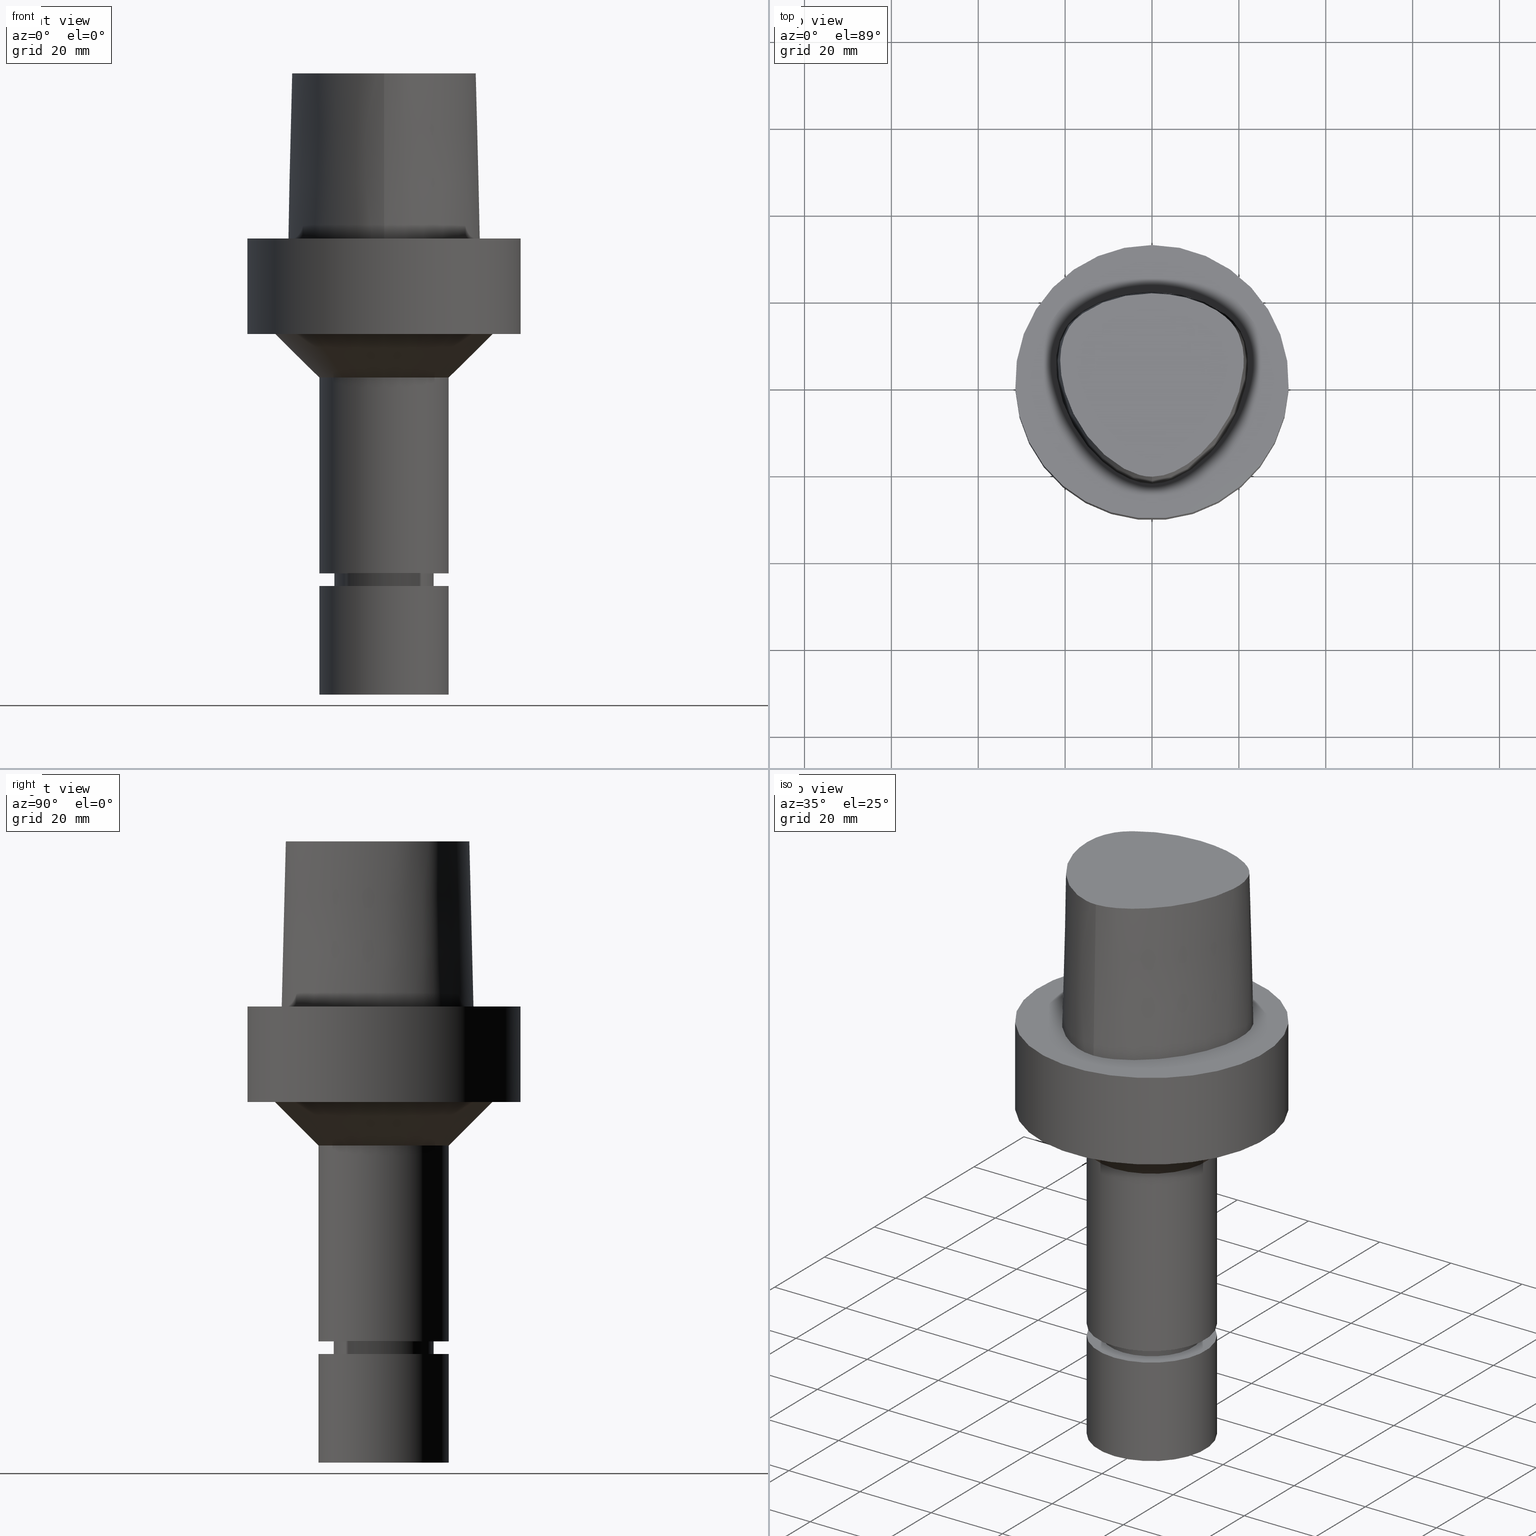
[diagram: canonical four-view strip — front | top / right | iso, engineering-drawing reading convention]
A machine part, canonical four-view strip (front | top / right | iso — engineering-drawing reading convention). The complete STEP part file that produces these views, byte-faithful:
ISO-10303-21;
HEADER;
FILE_DESCRIPTION((''),'1');
FILE_NAME('V:/90_\X2\53D65F9730C730FC30BF\X0\/00_\X2\6DE18DEF30C730FC30BF\X0\/ALL/CAPTO-BKUS\X2\52A05DE556F3\X0\_201801/C6-MEGAER/C6-MEGAER16-105NL.stp','2018-02-01T07:49:41',(''),(''),'Spatial Interop R21 SP3','Kubotek KeyCreator 2011 V10.0.2 (22737)',' ');
FILE_SCHEMA(('automotive_design'));
ENDSEC;
DATA;
#1=MECHANICAL_DESIGN_GEOMETRIC_PRESENTATION_REPRESENTATION(' ',(#14,#15,#16,#17,#18,#19,#20,#21,#22,#23,#24,#25,#26,#27,#28,#29,#30,#31,#32,#33,#34,#35,#36,#37,#38,#39,#40,#41,#42,#43,#44,#45,#46,#47,#48,#49,#50,#51,#52,#53),#10);
#2=PRODUCT_DEFINITION_CONTEXT('',#54,'design');
#3=APPLICATION_PROTOCOL_DEFINITION('INTERNATIONAL STANDARD','automotive_design',1994,#54);
#4=PRODUCT_CATEGORY_RELATIONSHIP('NONE','NONE',#55,#56);
#5=SHAPE_DEFINITION_REPRESENTATION(#57,#58);
#6=PRODUCT_DEFINITION_CONTEXT('',#59,'design');
#7=APPLICATION_PROTOCOL_DEFINITION('INTERNATIONAL STANDARD','automotive_design',1994,#59);
#8=PRODUCT_CATEGORY_RELATIONSHIP('NONE','NONE',#60,#61);
#9=SHAPE_DEFINITION_REPRESENTATION(#62,#63);
#10= (GEOMETRIC_REPRESENTATION_CONTEXT(3)GLOBAL_UNCERTAINTY_ASSIGNED_CONTEXT((#66))GLOBAL_UNIT_ASSIGNED_CONTEXT((#68,#69,#70))REPRESENTATION_CONTEXT('NONE','WORKSPACE'));
#14=STYLED_ITEM('',(#72),#73);
#15=STYLED_ITEM('',(#74),#75);
#16=STYLED_ITEM('',(#76,#77),#78);
#17=STYLED_ITEM('',(#79,#80),#81);
#18=STYLED_ITEM('',(#82,#83),#84);
#19=STYLED_ITEM('',(#85),#86);
#20=STYLED_ITEM('',(#87,#88),#89);
#21=STYLED_ITEM('',(#90,#91),#92);
#22=STYLED_ITEM('',(#93),#94);
#23=STYLED_ITEM('',(#95),#96);
#24=STYLED_ITEM('',(#97),#98);
#25=STYLED_ITEM('',(#99),#100);
#26=STYLED_ITEM('',(#101),#102);
#27=STYLED_ITEM('',(#103,#104),#105);
#28=STYLED_ITEM('',(#106),#107);
#29=STYLED_ITEM('',(#108,#109),#110);
#30=STYLED_ITEM('',(#111),#112);
#31=STYLED_ITEM('',(#113),#114);
#32=STYLED_ITEM('',(#115),#116);
#33=STYLED_ITEM('',(#117),#118);
#34=STYLED_ITEM('',(#119,#120),#121);
#35=STYLED_ITEM('',(#122,#123),#124);
#36=STYLED_ITEM('',(#125),#126);
#37=STYLED_ITEM('',(#127,#128),#129);
#38=STYLED_ITEM('',(#130),#131);
#39=STYLED_ITEM('',(#132,#133),#134);
#40=STYLED_ITEM('',(#135,#136),#137);
#41=STYLED_ITEM('',(#138),#139);
#42=STYLED_ITEM('',(#140,#141),#142);
#43=STYLED_ITEM('',(#143,#144),#145);
#44=STYLED_ITEM('',(#146,#147),#148);
#45=STYLED_ITEM('',(#149,#150),#151);
#46=STYLED_ITEM('',(#152,#153),#154);
#47=STYLED_ITEM('',(#155,#156),#157);
#48=STYLED_ITEM('',(#158),#159);
#49=STYLED_ITEM('',(#160,#161),#162);
#50=STYLED_ITEM('',(#163),#164);
#51=STYLED_ITEM('',(#165),#166);
#52=STYLED_ITEM('',(#167,#168),#169);
#53=STYLED_ITEM('',(#170),#171);
#54=APPLICATION_CONTEXT(' ');
#55=PRODUCT_CATEGORY('part','NONE');
#56=PRODUCT_RELATED_PRODUCT_CATEGORY('detail',' ',(#172));
#57=PRODUCT_DEFINITION_SHAPE('NONE','NONE',#173);
#58=ADVANCED_BREP_SHAPE_REPRESENTATION('Unnamed[1]',(#157,#174),#10);
#59=APPLICATION_CONTEXT(' ');
#60=PRODUCT_CATEGORY('part','NONE');
#61=PRODUCT_RELATED_PRODUCT_CATEGORY('detail',' ',(#175));
#62=PRODUCT_DEFINITION_SHAPE('NONE','NONE',#176);
#63=ADVANCED_BREP_SHAPE_REPRESENTATION('Unnamed[1]',(#145,#177),#10);
#66=UNCERTAINTY_MEASURE_WITH_UNIT(LENGTH_MEASURE(1.0E-006),#68,'','');
#68= (CONVERSION_BASED_UNIT('MILLIMETRE',#180)LENGTH_UNIT()NAMED_UNIT(#183));
#69= (NAMED_UNIT(#185)PLANE_ANGLE_UNIT()SI_UNIT($,.RADIAN.));
#70= (NAMED_UNIT(#185)SOLID_ANGLE_UNIT()SI_UNIT($,.STERADIAN.));
#72=PRESENTATION_STYLE_ASSIGNMENT((#191));
#73=EDGE_CURVE('Unnamed[1]',#192,#192,#193,.T.);
#74=PRESENTATION_STYLE_ASSIGNMENT((#194));
#75=EDGE_CURVE('Unnamed[1]',#195,#195,#196,.T.);
#76=PRESENTATION_STYLE_ASSIGNMENT((#197));
#77=PRESENTATION_STYLE_ASSIGNMENT((#198));
#78=ADVANCED_FACE('Unnamed[1]',(#199),#200,.T.);
#79=PRESENTATION_STYLE_ASSIGNMENT((#201));
#80=PRESENTATION_STYLE_ASSIGNMENT((#202));
#81=ADVANCED_FACE('Unnamed[1]',(#203,#204),#205,.T.);
#82=PRESENTATION_STYLE_ASSIGNMENT((#206));
#83=PRESENTATION_STYLE_ASSIGNMENT((#207));
#84=ADVANCED_FACE('Unnamed[1]',(#208),#209,.T.);
#85=PRESENTATION_STYLE_ASSIGNMENT((#210));
#86=EDGE_CURVE('Unnamed[1]',#211,#212,#213,.T.);
#87=PRESENTATION_STYLE_ASSIGNMENT((#214));
#88=PRESENTATION_STYLE_ASSIGNMENT((#215));
#89=ADVANCED_FACE('Unnamed[1]',(#216,#217),#218,.T.);
#90=PRESENTATION_STYLE_ASSIGNMENT((#219));
#91=PRESENTATION_STYLE_ASSIGNMENT((#220));
#92=ADVANCED_FACE('Unnamed[1]',(#221),#222,.T.);
#93=PRESENTATION_STYLE_ASSIGNMENT((#223));
#94=EDGE_CURVE('Unnamed[1]',#224,#211,#225,.T.);
#95=PRESENTATION_STYLE_ASSIGNMENT((#226));
#96=EDGE_CURVE('Unnamed[1]',#227,#227,#228,.T.);
#97=PRESENTATION_STYLE_ASSIGNMENT((#229));
#98=EDGE_CURVE('Unnamed[1]',#230,#230,#231,.T.);
#99=PRESENTATION_STYLE_ASSIGNMENT((#232));
#100=EDGE_CURVE('Unnamed[1]',#233,#233,#234,.T.);
#101=PRESENTATION_STYLE_ASSIGNMENT((#235));
#102=EDGE_CURVE('Unnamed[1]',#236,#236,#237,.T.);
#103=PRESENTATION_STYLE_ASSIGNMENT((#238));
#104=PRESENTATION_STYLE_ASSIGNMENT((#239));
#105=ADVANCED_FACE('Unnamed[1]',(#240,#241),#242,.T.);
#106=PRESENTATION_STYLE_ASSIGNMENT((#243));
#107=EDGE_CURVE('Unnamed[1]',#224,#244,#245,.T.);
#108=PRESENTATION_STYLE_ASSIGNMENT((#246));
#109=PRESENTATION_STYLE_ASSIGNMENT((#247));
#110=ADVANCED_FACE('Unnamed[1]',(#248,#249),#250,.T.);
#111=PRESENTATION_STYLE_ASSIGNMENT((#251));
#112=EDGE_CURVE('Unnamed[1]',#252,#212,#253,.T.);
#113=PRESENTATION_STYLE_ASSIGNMENT((#254));
#114=EDGE_CURVE('Unnamed[1]',#224,#252,#255,.T.);
#115=PRESENTATION_STYLE_ASSIGNMENT((#256));
#116=EDGE_CURVE('Unnamed[1]',#244,#211,#257,.T.);
#117=PRESENTATION_STYLE_ASSIGNMENT((#258));
#118=EDGE_CURVE('Unnamed[1]',#259,#259,#260,.T.);
#119=PRESENTATION_STYLE_ASSIGNMENT((#261));
#120=PRESENTATION_STYLE_ASSIGNMENT((#262));
#121=ADVANCED_FACE('Unnamed[1]',(#263,#264),#265,.T.);
#122=PRESENTATION_STYLE_ASSIGNMENT((#266));
#123=PRESENTATION_STYLE_ASSIGNMENT((#267));
#124=ADVANCED_FACE('Unnamed[1]',(#268),#269,.T.);
#125=PRESENTATION_STYLE_ASSIGNMENT((#270));
#126=EDGE_CURVE('Unnamed[1]',#271,#271,#272,.T.);
#127=PRESENTATION_STYLE_ASSIGNMENT((#273));
#128=PRESENTATION_STYLE_ASSIGNMENT((#274));
#129=ADVANCED_FACE('Unnamed[1]',(#275,#276),#277,.T.);
#130=PRESENTATION_STYLE_ASSIGNMENT((#278));
#131=EDGE_CURVE('Unnamed[1]',#279,#279,#280,.T.);
#132=PRESENTATION_STYLE_ASSIGNMENT((#281));
#133=PRESENTATION_STYLE_ASSIGNMENT((#282));
#134=ADVANCED_FACE('Unnamed[1]',(#283,#284),#285,.T.);
#135=PRESENTATION_STYLE_ASSIGNMENT((#286));
#136=PRESENTATION_STYLE_ASSIGNMENT((#287));
#137=ADVANCED_FACE('Unnamed[1]',(#288,#289),#290,.T.);
#138=PRESENTATION_STYLE_ASSIGNMENT((#291));
#139=EDGE_CURVE('Unnamed[1]',#252,#224,#292,.T.);
#140=PRESENTATION_STYLE_ASSIGNMENT((#293));
#141=PRESENTATION_STYLE_ASSIGNMENT((#294));
#142=ADVANCED_FACE('Unnamed[1]',(#295),#296,.T.);
#143=PRESENTATION_STYLE_ASSIGNMENT((#297));
#144=PRESENTATION_STYLE_ASSIGNMENT((#298));
#145=MANIFOLD_SOLID_BREP('Unnamed[1]',#299);
#146=PRESENTATION_STYLE_ASSIGNMENT((#300));
#147=PRESENTATION_STYLE_ASSIGNMENT((#301));
#148=ADVANCED_FACE('Unnamed[1]',(#302,#303),#304,.T.);
#149=PRESENTATION_STYLE_ASSIGNMENT((#305));
#150=PRESENTATION_STYLE_ASSIGNMENT((#306));
#151=ADVANCED_FACE('Unnamed[1]',(#307),#308,.T.);
#152=PRESENTATION_STYLE_ASSIGNMENT((#309));
#153=PRESENTATION_STYLE_ASSIGNMENT((#310));
#154=ADVANCED_FACE('Unnamed[1]',(#311,#312),#313,.T.);
#155=PRESENTATION_STYLE_ASSIGNMENT((#314));
#156=PRESENTATION_STYLE_ASSIGNMENT((#315));
#157=MANIFOLD_SOLID_BREP('Unnamed[1]',#316);
#158=PRESENTATION_STYLE_ASSIGNMENT((#317));
#159=EDGE_CURVE('Unnamed[1]',#212,#244,#318,.T.);
#160=PRESENTATION_STYLE_ASSIGNMENT((#319));
#161=PRESENTATION_STYLE_ASSIGNMENT((#320));
#162=ADVANCED_FACE('Unnamed[1]',(#321,#322),#323,.T.);
#163=PRESENTATION_STYLE_ASSIGNMENT((#324));
#164=EDGE_CURVE('Unnamed[1]',#325,#325,#326,.T.);
#165=PRESENTATION_STYLE_ASSIGNMENT((#327));
#166=EDGE_CURVE('Unnamed[1]',#328,#328,#329,.T.);
#167=PRESENTATION_STYLE_ASSIGNMENT((#330));
#168=PRESENTATION_STYLE_ASSIGNMENT((#331));
#169=ADVANCED_FACE('Unnamed[1]',(#332),#333,.T.);
#170=PRESENTATION_STYLE_ASSIGNMENT((#334));
#171=EDGE_CURVE('Unnamed[1]',#335,#335,#336,.T.);
#172=PRODUCT('Unnamed[1]','Unnamed[1]','PART-Unnamed[1]-DESC',(#337));
#173=PRODUCT_DEFINITION('NONE','NONE',#338,#2);
#174=AXIS2_PLACEMENT_3D('',#339,#340,#341);
#175=PRODUCT('Unnamed[1]','Unnamed[1]','PART-Unnamed[1]-DESC',(#342));
#176=PRODUCT_DEFINITION('NONE','NONE',#343,#6);
#177=AXIS2_PLACEMENT_3D('',#344,#345,#346);
#180=LENGTH_MEASURE_WITH_UNIT(LENGTH_MEASURE(1.0),#347);
#183=DIMENSIONAL_EXPONENTS(1.0,0.0,0.0,0.0,0.0,0.0,0.0);
#185=DIMENSIONAL_EXPONENTS(0.0,0.0,0.0,0.0,0.0,0.0,0.0);
#191=CURVE_STYLE('',#348,POSITIVE_LENGTH_MEASURE(1000.0),#349);
#192=VERTEX_POINT('',#350);
#193=CIRCLE('',#351,9.89999999999962);
#194=CURVE_STYLE('',#352,POSITIVE_LENGTH_MEASURE(1000.0),#353);
#195=VERTEX_POINT('',#354);
#196=CIRCLE('',#355,15.0);
#197=SURFACE_STYLE_USAGE(.BOTH.,#356);
#198=CURVE_STYLE('',#357,POSITIVE_LENGTH_MEASURE(1000.0),#358);
#199=FACE_OUTER_BOUND('',#359,.T.);
#200=CONICAL_SURFACE('',#360,1.0,0.0249931148600041);
#201=SURFACE_STYLE_USAGE(.BOTH.,#361);
#202=CURVE_STYLE('',#362,POSITIVE_LENGTH_MEASURE(1000.0),#363);
#203=FACE_BOUND('',#364,.T.);
#204=FACE_BOUND('',#365,.T.);
#205=CYLINDRICAL_SURFACE('',#366,11.4999999999964);
#206=SURFACE_STYLE_USAGE(.BOTH.,#367);
#207=CURVE_STYLE('',#368,POSITIVE_LENGTH_MEASURE(1000.0),#369);
#208=FACE_OUTER_BOUND('',#370,.T.);
#209=B_SPLINE_SURFACE_WITH_KNOTS('',3,3,((#371,#372,#373,#374),(#375,#376,#377,#378),(#379,#380,#381,#382),(#383,#384,#385,#386),(#387,#388,#389,#390),(#391,#392,#393,#394),(#395,#396,#397,#398),(#399,#400,#401,#402),(#403,#404,#405,#406),(#407,#408,#409,#410),(#411,#412,#413,#414),(#415,#416,#417,#418),(#419,#420,#421,#422),(#423,#424,#425,#426),(#427,#428,#429,#430),(#431,#432,#433,#434),(#435,#436,#437,#438)),.UNSPECIFIED.,.F.,.F.,.F.,(4,1,1,1,1,1,1,1,1,1,1,1,1,1,4),(4,4),(-13.2302678617486,-12.816821991069,-12.4033761203893,-11.9899302497097,-11.57648437903,-11.1630385083504,-10.9563155730106,-10.7495926376707,-10.3361467669911,-9.92270089631145,-9.09580915495216,-8.26891741359287,-7.44202567223358,-7.02857980155394,-6.6151339308743),(-3.8,0.0),.UNSPECIFIED.);
#210=CURVE_STYLE('',#439,POSITIVE_LENGTH_MEASURE(1000.0),#440);
#211=VERTEX_POINT('',#441);
#212=VERTEX_POINT('',#442);
#213=B_SPLINE_CURVE_WITH_KNOTS('',3,(#443,#444,#445,#446,#447,#448,#449,#450,#451,#452,#453,#454,#455,#456,#457,#458,#459),.UNSPECIFIED.,.F.,.F.,(4,1,1,1,1,1,1,1,1,1,1,1,1,1,4),(-13.2302678617486,-12.816821991069,-12.4033761203893,-11.9899302497097,-11.57648437903,-11.1630385083504,-10.9563155730106,-10.7495926376707,-10.3361467669911,-9.92270089631145,-9.09580915495216,-8.26891741359287,-7.44202567223358,-7.02857980155394,-6.6151339308743),.UNSPECIFIED.);
#214=SURFACE_STYLE_USAGE(.BOTH.,#460);
#215=CURVE_STYLE('',#461,POSITIVE_LENGTH_MEASURE(1000.0),#462);
#216=FACE_BOUND('',#463,.T.);
#217=FACE_BOUND('',#464,.T.);
#218=CYLINDRICAL_SURFACE('',#465,15.0);
#219=SURFACE_STYLE_USAGE(.BOTH.,#466);
#220=CURVE_STYLE('',#467,POSITIVE_LENGTH_MEASURE(1000.0),#468);
#221=FACE_OUTER_BOUND('',#469,.T.);
#222=PLANE('',#470);
#223=CURVE_STYLE('',#471,POSITIVE_LENGTH_MEASURE(1000.0),#472);
#224=VERTEX_POINT('',#473);
#225=LINE('',#474,#475);
#226=CURVE_STYLE('',#476,POSITIVE_LENGTH_MEASURE(1000.0),#477);
#227=VERTEX_POINT('',#478);
#228=CIRCLE('',#479,14.9999999999999);
#229=CURVE_STYLE('',#480,POSITIVE_LENGTH_MEASURE(1000.0),#481);
#230=VERTEX_POINT('',#482);
#231=CIRCLE('',#483,24.9999999999993);
#232=CURVE_STYLE('',#484,POSITIVE_LENGTH_MEASURE(1000.0),#485);
#233=VERTEX_POINT('',#486);
#234=CIRCLE('',#487,11.4999999999907);
#235=CURVE_STYLE('',#488,POSITIVE_LENGTH_MEASURE(1000.0),#489);
#236=VERTEX_POINT('',#490);
#237=CIRCLE('',#491,31.5);
#238=SURFACE_STYLE_USAGE(.BOTH.,#492);
#239=CURVE_STYLE('',#493,POSITIVE_LENGTH_MEASURE(1000.0),#494);
#240=FACE_BOUND('',#495,.T.);
#241=FACE_BOUND('',#496,.T.);
#242=CONICAL_SURFACE('',#497,11.250000000001,1.047197551189);
#243=CURVE_STYLE('',#498,POSITIVE_LENGTH_MEASURE(1000.0),#499);
#244=VERTEX_POINT('',#500);
#245=LINE('',#501,#502);
#246=SURFACE_STYLE_USAGE(.BOTH.,#503);
#247=CURVE_STYLE('',#504,POSITIVE_LENGTH_MEASURE(1000.0),#505);
#248=FACE_BOUND('',#506,.T.);
#249=FACE_BOUND('',#507,.T.);
#250=CYLINDRICAL_SURFACE('',#508,11.0000000000001);
#251=CURVE_STYLE('',#509,POSITIVE_LENGTH_MEASURE(1000.0),#510);
#252=VERTEX_POINT('',#511);
#253=LINE('',#512,#513);
#254=CURVE_STYLE('',#514,POSITIVE_LENGTH_MEASURE(1000.0),#515);
#255=B_SPLINE_CURVE_WITH_KNOTS('',3,(#516,#517,#518,#519,#520,#521,#522,#523,#524,#525,#526,#527,#528,#529,#530,#531),.UNSPECIFIED.,.F.,.F.,(4,1,1,1,1,1,1,1,1,1,1,1,1,4),(0.0,0.447924670568964,0.9388024242536,1.50591409090711,2.07314340012323,2.72424957442464,3.2253501842849,3.80982102049476,4.34867996267067,4.85900173381144,5.37972031856977,6.03459825488646,6.61113557741484,6.61513393087395),.UNSPECIFIED.);
#256=CURVE_STYLE('',#532,POSITIVE_LENGTH_MEASURE(1000.0),#533);
#257=CIRCLE('',#534,0.949936168436318);
#258=CURVE_STYLE('',#535,POSITIVE_LENGTH_MEASURE(1000.0),#536);
#259=VERTEX_POINT('',#537);
#260=CIRCLE('',#538,15.0000000000001);
#261=SURFACE_STYLE_USAGE(.BOTH.,#539);
#262=CURVE_STYLE('',#540,POSITIVE_LENGTH_MEASURE(1000.0),#541);
#263=FACE_BOUND('',#542,.T.);
#264=FACE_BOUND('',#543,.T.);
#265=CONICAL_SURFACE('',#544,19.9999999999996,0.785398163397415);
#266=SURFACE_STYLE_USAGE(.BOTH.,#545);
#267=CURVE_STYLE('',#546,POSITIVE_LENGTH_MEASURE(1000.0),#547);
#268=FACE_OUTER_BOUND('',#548,.T.);
#269=PLANE('',#549);
#270=CURVE_STYLE('',#550,POSITIVE_LENGTH_MEASURE(1000.0),#551);
#271=VERTEX_POINT('',#552);
#272=CIRCLE('',#553,11.0000000000003);
#273=SURFACE_STYLE_USAGE(.BOTH.,#554);
#274=CURVE_STYLE('',#555,POSITIVE_LENGTH_MEASURE(1000.0),#556);
#275=FACE_BOUND('',#557,.T.);
#276=FACE_BOUND('',#558,.T.);
#277=CONICAL_SURFACE('',#559,10.4499999999999,0.52359877559823);
#278=CURVE_STYLE('',#560,POSITIVE_LENGTH_MEASURE(1000.0),#561);
#279=VERTEX_POINT('',#562);
#280=CIRCLE('',#563,11.5000000000021);
#281=SURFACE_STYLE_USAGE(.BOTH.,#564);
#282=CURVE_STYLE('',#565,POSITIVE_LENGTH_MEASURE(1000.0),#566);
#283=FACE_BOUND('',#567,.T.);
#284=FACE_OUTER_BOUND('',#568,.T.);
#285=PLANE('',#569);
#286=SURFACE_STYLE_USAGE(.BOTH.,#570);
#287=CURVE_STYLE('',#571,POSITIVE_LENGTH_MEASURE(1000.0),#572);
#288=FACE_BOUND('',#573,.T.);
#289=FACE_BOUND('',#574,.T.);
#290=CYLINDRICAL_SURFACE('',#575,15.0000000000001);
#291=CURVE_STYLE('',#576,POSITIVE_LENGTH_MEASURE(1000.0),#577);
#292=B_SPLINE_CURVE_WITH_KNOTS('',3,(#578,#579,#580,#581,#582,#583,#584,#585,#586,#587,#588,#589,#590,#591,#592,#593),.UNSPECIFIED.,.F.,.F.,(4,1,1,1,1,1,1,1,1,1,1,1,1,4),(6.61513393087476,6.99917207152274,7.48193246986995,7.96289324787093,8.45540287038584,9.10291653679981,9.67129810936083,10.1618749681153,10.6358867802489,11.1080734988593,11.6043706019633,12.09451993853,12.6985979284494,13.2302678617486),.UNSPECIFIED.);
#293=SURFACE_STYLE_USAGE(.BOTH.,#594);
#294=CURVE_STYLE('',#595,POSITIVE_LENGTH_MEASURE(1000.0),#596);
#295=FACE_OUTER_BOUND('',#597,.T.);
#296=PLANE('',#598);
#297=SURFACE_STYLE_USAGE(.BOTH.,#599);
#298=CURVE_STYLE('',#600,POSITIVE_LENGTH_MEASURE(1000.0),#601);
#299=CLOSED_SHELL('',(#142,#151,#89));
#300=SURFACE_STYLE_USAGE(.BOTH.,#602);
#301=CURVE_STYLE('',#603,POSITIVE_LENGTH_MEASURE(1000.0),#604);
#302=FACE_BOUND('',#605,.T.);
#303=FACE_OUTER_BOUND('',#606,.T.);
#304=PLANE('',#607);
#305=SURFACE_STYLE_USAGE(.BOTH.,#608);
#306=CURVE_STYLE('',#609,POSITIVE_LENGTH_MEASURE(1000.0),#610);
#307=FACE_OUTER_BOUND('',#611,.T.);
#308=PLANE('',#612);
#309=SURFACE_STYLE_USAGE(.BOTH.,#613);
#310=CURVE_STYLE('',#614,POSITIVE_LENGTH_MEASURE(1000.0),#615);
#311=FACE_BOUND('',#616,.T.);
#312=FACE_OUTER_BOUND('',#617,.T.);
#313=PLANE('',#618);
#314=SURFACE_STYLE_USAGE(.BOTH.,#619);
#315=CURVE_STYLE('',#620,POSITIVE_LENGTH_MEASURE(1000.0),#621);
#316=CLOSED_SHELL('',(#84,#169,#78,#124,#148,#162,#154,#121,#137,#134,#81,#105,#110,#129,#92));
#317=CURVE_STYLE('',#622,POSITIVE_LENGTH_MEASURE(1000.0),#623);
#318=B_SPLINE_CURVE_WITH_KNOTS('',3,(#624,#625,#626,#627,#628,#629,#630,#631,#632,#633,#634,#635,#636,#637,#638,#639,#640,#641),.UNSPECIFIED.,.F.,.F.,(4,1,1,1,1,1,1,1,1,2,1,1,1,1,4),(-6.6151339308743,-6.20168806019465,-5.78824218951501,-5.37479631883537,-4.96135044815572,-4.13445870679644,-3.30756696543715,-2.89412109475751,-2.48067522407786,-2.06722935339822,-1.65378348271857,-1.24033761203893,-0.826891741359287,-0.413445870679644,0.0),.UNSPECIFIED.);
#319=SURFACE_STYLE_USAGE(.BOTH.,#642);
#320=CURVE_STYLE('',#643,POSITIVE_LENGTH_MEASURE(1000.0),#644);
#321=FACE_BOUND('',#645,.T.);
#322=FACE_BOUND('',#646,.T.);
#323=CYLINDRICAL_SURFACE('',#647,31.5);
#324=CURVE_STYLE('',#648,POSITIVE_LENGTH_MEASURE(1000.0),#649);
#325=VERTEX_POINT('',#650);
#326=CIRCLE('',#651,31.5);
#327=CURVE_STYLE('',#652,POSITIVE_LENGTH_MEASURE(1000.0),#653);
#328=VERTEX_POINT('',#654);
#329=CIRCLE('',#655,10.9999999999999);
#330=SURFACE_STYLE_USAGE(.BOTH.,#656);
#331=CURVE_STYLE('',#657,POSITIVE_LENGTH_MEASURE(1000.0),#658);
#332=FACE_OUTER_BOUND('',#659,.T.);
#333=B_SPLINE_SURFACE_WITH_KNOTS('',3,3,((#660,#661,#662,#663),(#664,#665,#666,#667),(#668,#669,#670,#671),(#672,#673,#674,#675),(#676,#677,#678,#679),(#680,#681,#682,#683),(#684,#685,#686,#687),(#688,#689,#690,#691),(#692,#693,#694,#695),(#696,#697,#698,#699),(#700,#701,#702,#703),(#704,#705,#706,#707),(#708,#709,#710,#711),(#712,#713,#714,#715),(#716,#717,#718,#719),(#720,#721,#722,#723),(#724,#725,#726,#727),(#728,#729,#730,#731)),.UNSPECIFIED.,.F.,.F.,.F.,(4,1,1,1,1,1,1,1,1,2,1,1,1,1,4),(4,4),(-6.6151339308743,-6.20168806019465,-5.78824218951501,-5.37479631883537,-4.96135044815572,-4.13445870679644,-3.30756696543715,-2.89412109475751,-2.48067522407786,-2.06722935339822,-1.65378348271857,-1.24033761203893,-0.826891741359287,-0.413445870679644,0.0),(-3.8,0.0),.UNSPECIFIED.);
#334=CURVE_STYLE('',#732,POSITIVE_LENGTH_MEASURE(1000.0),#733);
#335=VERTEX_POINT('',#734);
#336=CIRCLE('',#735,15.0000000000002);
#337=PRODUCT_CONTEXT('',#54,'mechanical');
#338=PRODUCT_DEFINITION_FORMATION_WITH_SPECIFIED_SOURCE(' ','NONE',#172,.NOT_KNOWN.);
#339=CARTESIAN_POINT('',(0.0,0.0,0.0));
#340=DIRECTION('',(0.0,0.0,1.0));
#341=DIRECTION('',(1.0,0.0,0.0));
#342=PRODUCT_CONTEXT('',#59,'mechanical');
#343=PRODUCT_DEFINITION_FORMATION_WITH_SPECIFIED_SOURCE(' ','NONE',#175,.NOT_KNOWN.);
#344=CARTESIAN_POINT('',(0.0,0.0,0.0));
#345=DIRECTION('',(0.0,0.0,1.0));
#346=DIRECTION('',(1.0,0.0,0.0));
#347= (NAMED_UNIT(#183)LENGTH_UNIT()SI_UNIT(.MILLI.,.METRE.));
#348=DRAUGHTING_PRE_DEFINED_CURVE_FONT('continuous');
#349=COLOUR_RGB('',0.0,1.0,0.0);
#350=CARTESIAN_POINT('',(5.89055110389872E-015,9.89999999999963,-96.1999999999991));
#351=AXIS2_PLACEMENT_3D('',#737,#738,#739);
#352=DRAUGHTING_PRE_DEFINED_CURVE_FONT('continuous');
#353=COLOUR_RGB('',0.0,1.0,0.0);
#354=CARTESIAN_POINT('',(6.4293956955236E-015,15.0,-105.0));
#355=AXIS2_PLACEMENT_3D('',#740,#741,#742);
#356=SURFACE_SIDE_STYLE('',(#743));
#357=DRAUGHTING_PRE_DEFINED_CURVE_FONT('continuous');
#358=COLOUR_RGB('',0.0,1.0,0.0);
#359=EDGE_LOOP('',(#744,#745,#746));
#360=AXIS2_PLACEMENT_3D('',#747,#748,#749);
#361=SURFACE_SIDE_STYLE('',(#750));
#362=DRAUGHTING_PRE_DEFINED_CURVE_FONT('continuous');
#363=COLOUR_RGB('',0.0,1.0,0.0);
#364=EDGE_LOOP('',(#751));
#365=EDGE_LOOP('',(#752));
#366=AXIS2_PLACEMENT_3D('',#753,#754,#755);
#367=SURFACE_SIDE_STYLE('',(#756));
#368=DRAUGHTING_PRE_DEFINED_CURVE_FONT('continuous');
#369=COLOUR_RGB('',0.0,1.0,0.0);
#370=EDGE_LOOP('',(#757,#758,#759,#760));
#371=CARTESIAN_POINT('',(-0.001218367817519,19.7276822012873,38.0));
#372=CARTESIAN_POINT('',(0.014082083248157,20.0439577123075,25.3333333333066));
#373=CARTESIAN_POINT('',(0.029382534313671,20.3602332232908,12.6666666666934));
#374=CARTESIAN_POINT('',(0.044682985379347,20.6765087343109,1.61778115328528E-031));
#375=CARTESIAN_POINT('',(1.37788651195108,19.6609652834875,38.0));
#376=CARTESIAN_POINT('',(1.3931885827258,19.9772407169847,25.3333333333066));
#377=CARTESIAN_POINT('',(1.40849065356095,20.2935162254648,12.6666666666934));
#378=CARTESIAN_POINT('',(1.42379272427753,20.6097915814392,8.62816615085482E-032));
#379=CARTESIAN_POINT('',(4.135446440878,19.5347778787784,38.0));
#380=CARTESIAN_POINT('',(4.16466278851883,19.8511031866125,25.3333333333066));
#381=CARTESIAN_POINT('',(4.1938791526746,20.1674284644204,12.6666666666934));
#382=CARTESIAN_POINT('',(4.2230955003445,20.4837538303966,1.4791141972894E-031));
#383=CARTESIAN_POINT('',(8.213607363795,18.7706026638736,38.0));
#384=CARTESIAN_POINT('',(8.29980745008421,19.0767495109635,25.3333333333066));
#385=CARTESIAN_POINT('',(8.38600751285747,19.3828964329996,12.6666666666934));
#386=CARTESIAN_POINT('',(8.47220762821777,19.6890432607088,9.86076131526265E-032));
#387=CARTESIAN_POINT('',(12.1316338645671,17.3698624840857,38.0));
#388=CARTESIAN_POINT('',(12.2591308270381,17.6610739397708,25.3333333333066));
#389=CARTESIAN_POINT('',(12.3866278083543,17.9522853923553,12.6666666666934));
#390=CARTESIAN_POINT('',(12.5141247708253,18.2434968480404,0.0));
#391=CARTESIAN_POINT('',(15.7706546153679,15.3789501349612,38.0));
#392=CARTESIAN_POINT('',(15.9483905900895,15.6437731794811,25.3333333333066));
#393=CARTESIAN_POINT('',(16.1261265513272,15.9085961736944,12.6666666666934));
#394=CARTESIAN_POINT('',(16.3038624872874,16.1734192182143,1.97215226305253E-031));
#395=CARTESIAN_POINT('',(18.4265894256284,13.0570022172893,38.0));
#396=CARTESIAN_POINT('',(18.6659567517146,13.2725589420689,25.3333333333066));
#397=CARTESIAN_POINT('',(18.9053240921419,13.4881156488541,12.6666666666934));
#398=CARTESIAN_POINT('',(19.1446913988473,13.7036723639434,-1.97215226305253E-031));
#399=CARTESIAN_POINT('',(19.8679958653038,10.6923771981998,38.0));
#400=CARTESIAN_POINT('',(20.1559937048299,10.8287388264873,25.3333333333066));
#401=CARTESIAN_POINT('',(20.4439915656177,10.965100461641,12.6666666666934));
#402=CARTESIAN_POINT('',(20.7319894342149,11.1014620996188,0.0));
#403=CARTESIAN_POINT('',(20.8470867582337,8.07149548576131,38.0));
#404=CARTESIAN_POINT('',(21.1591164072431,8.14132775555392,25.3333333333066));
#405=CARTESIAN_POINT('',(21.4711459821861,8.21116003697855,12.6666666666934));
#406=CARTESIAN_POINT('',(21.7831756505763,8.28099229708081,-1.97215226305253E-031));
#407=CARTESIAN_POINT('',(21.2693244256982,4.61157245650171,38.0));
#408=CARTESIAN_POINT('',(21.5881576801997,4.6105997689982,25.3333333333066));
#409=CARTESIAN_POINT('',(21.9069908544037,4.60962709346857,12.6666666666934));
#410=CARTESIAN_POINT('',(22.2258240701438,4.60865440596506,0.0));
#411=CARTESIAN_POINT('',(20.8071610855575,-0.912828649855193,38.0));
#412=CARTESIAN_POINT('',(21.119311671178,-0.979640884839481,25.3333333333066));
#413=CARTESIAN_POINT('',(21.4314624224461,-1.04645306732201,12.6666666666934));
#414=CARTESIAN_POINT('',(21.7436130080666,-1.11326526354485,0.0));
#415=CARTESIAN_POINT('',(18.6841935581315,-7.54428794252837,38.0));
#416=CARTESIAN_POINT('',(18.9734452551861,-7.6809665891091,25.3333333333066));
#417=CARTESIAN_POINT('',(19.2626970689956,-7.81764505382656,12.6666666666934));
#418=CARTESIAN_POINT('',(19.5519487660502,-7.95432366164584,0.0));
#419=CARTESIAN_POINT('',(14.2175552814,-14.5971504342323,38.0));
#420=CARTESIAN_POINT('',(14.4641757465198,-14.8010930946929,25.3333333333066));
#421=CARTESIAN_POINT('',(14.710796247264,-15.0050359737917,12.6666666666934));
#422=CARTESIAN_POINT('',(14.9574167123838,-15.2089785567293,0.0));
#423=CARTESIAN_POINT('',(9.0844808732933,-19.3179298129689,38.0));
#424=CARTESIAN_POINT('',(9.27912152349017,-19.572866915557,25.3333333333066));
#425=CARTESIAN_POINT('',(9.47376218971294,-19.827804295621,12.6666666666934));
#426=CARTESIAN_POINT('',(9.66840283021945,-20.0827414369705,-9.86076131526265E-032));
#427=CARTESIAN_POINT('',(4.17112919194182,-21.8987568152736,38.0));
#428=CARTESIAN_POINT('',(4.28618163483998,-22.1973837173649,25.3333333333066));
#429=CARTESIAN_POINT('',(4.40123406239433,-22.4960105163661,12.6666666666934));
#430=CARTESIAN_POINT('',(4.51628650521788,-22.7946374572188,-9.86076131526265E-032));
#431=CARTESIAN_POINT('',(1.41533654381097,-22.5120888467812,38.0));
#432=CARTESIAN_POINT('',(1.46311520162011,-22.8284916374445,25.3333333333066));
#433=CARTESIAN_POINT('',(1.51089385942236,-23.144894486341,12.6666666666934));
#434=CARTESIAN_POINT('',(1.55867251738073,-23.4612972770043,-1.23259516440783E-032));
#435=CARTESIAN_POINT('',(0.038736923393866,-22.5191997536361,38.0));
#436=CARTESIAN_POINT('',(0.04035580478973,-22.8358410047159,25.3333333333066));
#437=CARTESIAN_POINT('',(0.041974686185626,-23.1524822558133,12.6666666666934));
#438=CARTESIAN_POINT('',(0.04359356758149,-23.4691235068931,7.78075697532443E-032));
#439=DRAUGHTING_PRE_DEFINED_CURVE_FONT('continuous');
#440=COLOUR_RGB('',0.0,1.0,0.0);
#441=CARTESIAN_POINT('',(0.044682985379347,20.6765087343109,1.61778115328528E-031));
#442=CARTESIAN_POINT('',(0.04359356758149,-23.4691235068931,7.78075697532443E-032));
#443=CARTESIAN_POINT('',(0.044682985379347,20.6765087343109,1.61778115328528E-031));
#444=CARTESIAN_POINT('',(1.42379272427753,20.6097915814392,8.62816615085482E-032));
#445=CARTESIAN_POINT('',(4.2230955003445,20.4837538303966,1.4791141972894E-031));
#446=CARTESIAN_POINT('',(8.47220762821777,19.6890432607088,9.86076131526265E-032));
#447=CARTESIAN_POINT('',(12.5141247708253,18.2434968480404,0.0));
#448=CARTESIAN_POINT('',(16.3038624872874,16.1734192182143,1.97215226305253E-031));
#449=CARTESIAN_POINT('',(19.1446913988473,13.7036723639434,-1.97215226305253E-031));
#450=CARTESIAN_POINT('',(20.7319894342149,11.1014620996188,0.0));
#451=CARTESIAN_POINT('',(21.7831756505763,8.28099229708081,-1.97215226305253E-031));
#452=CARTESIAN_POINT('',(22.2258240701438,4.60865440596506,0.0));
#453=CARTESIAN_POINT('',(21.7436130080666,-1.11326526354485,0.0));
#454=CARTESIAN_POINT('',(19.5519487660502,-7.95432366164584,0.0));
#455=CARTESIAN_POINT('',(14.9574167123838,-15.2089785567293,0.0));
#456=CARTESIAN_POINT('',(9.66840283021945,-20.0827414369705,-9.86076131526265E-032));
#457=CARTESIAN_POINT('',(4.51628650521788,-22.7946374572188,-9.86076131526265E-032));
#458=CARTESIAN_POINT('',(1.55867251738073,-23.4612972770043,-1.23259516440783E-032));
#459=CARTESIAN_POINT('',(0.04359356758149,-23.4691235068931,7.78075697532443E-032));
#460=SURFACE_SIDE_STYLE('',(#761));
#461=DRAUGHTING_PRE_DEFINED_CURVE_FONT('continuous');
#462=COLOUR_RGB('',0.0,1.0,0.0);
#463=EDGE_LOOP('',(#762));
#464=EDGE_LOOP('',(#763));
#465=AXIS2_PLACEMENT_3D('',#764,#765,#766);
#466=SURFACE_SIDE_STYLE('',(#767));
#467=DRAUGHTING_PRE_DEFINED_CURVE_FONT('continuous');
#468=COLOUR_RGB('',0.0,1.0,0.0);
#469=EDGE_LOOP('',(#768));
#470=AXIS2_PLACEMENT_3D('',#769,#770,#771);
#471=DRAUGHTING_PRE_DEFINED_CURVE_FONT('continuous');
#472=COLOUR_RGB('',0.0,1.0,0.0);
#473=CARTESIAN_POINT('',(-0.001218547003662,19.7276821925089,38.0));
#474=CARTESIAN_POINT('',(-0.001218547003662,19.7276821925089,38.0));
#475=VECTOR('',#772,38.0118715503078);
#476=DRAUGHTING_PRE_DEFINED_CURVE_FONT('continuous');
#477=COLOUR_RGB('',0.0,1.0,0.0);
#478=CARTESIAN_POINT('',(1.9594348786358E-015,14.9999999999999,-32.0000000000006));
#479=AXIS2_PLACEMENT_3D('',#773,#774,#775);
#480=DRAUGHTING_PRE_DEFINED_CURVE_FONT('continuous');
#481=COLOUR_RGB('',0.0,1.0,0.0);
#482=CARTESIAN_POINT('',(1.34711147906212E-015,24.9999999999993,-22.0000000000005));
#483=AXIS2_PLACEMENT_3D('',#776,#777,#778);
#484=DRAUGHTING_PRE_DEFINED_CURVE_FONT('continuous');
#485=COLOUR_RGB('',0.0,1.0,0.0);
#486=CARTESIAN_POINT('',(4.72101341771896E-015,11.4999999999907,-77.1000001144153));
#487=AXIS2_PLACEMENT_3D('',#779,#780,#781);
#488=DRAUGHTING_PRE_DEFINED_CURVE_FONT('continuous');
#489=COLOUR_RGB('',0.0,1.0,0.0);
#490=CARTESIAN_POINT('',(1.34711147906212E-015,31.5,-22.0000000000006));
#491=AXIS2_PLACEMENT_3D('',#782,#783,#784);
#492=SURFACE_SIDE_STYLE('',(#785));
#493=DRAUGHTING_PRE_DEFINED_CURVE_FONT('continuous');
#494=COLOUR_RGB('',0.0,1.0,0.0);
#495=EDGE_LOOP('',(#786));
#496=EDGE_LOOP('',(#787));
#497=AXIS2_PLACEMENT_3D('',#788,#789,#790);
#498=DRAUGHTING_PRE_DEFINED_CURVE_FONT('continuous');
#499=COLOUR_RGB('',0.0,1.0,0.0);
#500=CARTESIAN_POINT('',(-0.045171994691285,20.6766009553285,1.6755590516169E-031));
#501=CARTESIAN_POINT('',(-0.001218547003662,19.7276821925089,38.0));
#502=VECTOR('',#791,38.0118715498723);
#503=SURFACE_SIDE_STYLE('',(#792));
#504=DRAUGHTING_PRE_DEFINED_CURVE_FONT('continuous');
#505=COLOUR_RGB('',0.0,1.0,0.0);
#506=EDGE_LOOP('',(#793));
#507=EDGE_LOOP('',(#794));
#508=AXIS2_PLACEMENT_3D('',#795,#796,#797);
#509=DRAUGHTING_PRE_DEFINED_CURVE_FONT('continuous');
#510=COLOUR_RGB('',0.0,1.0,0.0);
#511=CARTESIAN_POINT('',(0.038736923393866,-22.5191997536361,38.0));
#512=CARTESIAN_POINT('',(0.038736923393866,-22.5191997536361,38.0));
#513=VECTOR('',#798,38.0118715498723);
#514=DRAUGHTING_PRE_DEFINED_CURVE_FONT('continuous');
#515=COLOUR_RGB('',0.0,1.0,0.0);
#516=CARTESIAN_POINT('',(-0.001218547003662,19.7276821925089,38.0));
#517=CARTESIAN_POINT('',(-1.49408492138443,19.6585333605309,38.0));
#518=CARTESIAN_POINT('',(-4.62297391420352,19.513604770166,38.0));
#519=CARTESIAN_POINT('',(-9.56160616752212,18.4291575730197,38.0));
#520=CARTESIAN_POINT('',(-14.5427684976927,16.2697452580488,38.0));
#521=CARTESIAN_POINT('',(-19.4315563551602,12.5302108980807,38.0));
#522=CARTESIAN_POINT('',(-21.306358833612,6.76352894547076,38.0));
#523=CARTESIAN_POINT('',(-21.0724946936277,0.957075236984038,38.0));
#524=CARTESIAN_POINT('',(-19.7876470880144,-4.34628503581652,38.0));
#525=CARTESIAN_POINT('',(-17.5396999600095,-9.33314444653089,38.0));
#526=CARTESIAN_POINT('',(-14.645447733857,-13.7185760345629,38.0));
#527=CARTESIAN_POINT('',(-10.7996726536643,-17.856257282137,38.0));
#528=CARTESIAN_POINT('',(-6.00479510196376,-21.2687382067675,38.0));
#529=CARTESIAN_POINT('',(-1.90747171908525,-22.5250621415864,38.0));
#530=CARTESIAN_POINT('',(0.025424107066464,-22.5192678176378,38.0));
#531=CARTESIAN_POINT('',(0.038736923394311,-22.519199753636,38.0));
#532=DRAUGHTING_PRE_DEFINED_CURVE_FONT('continuous');
#533=COLOUR_RGB('',0.0,1.0,0.0);
#534=AXIS2_PLACEMENT_3D('',#799,#800,#801);
#535=DRAUGHTING_PRE_DEFINED_CURVE_FONT('continuous');
#536=COLOUR_RGB('',0.0,1.0,0.0);
#537=CARTESIAN_POINT('',(4.89858719658941E-015,15.0000000000001,-80.0));
#538=AXIS2_PLACEMENT_3D('',#802,#803,#804);
#539=SURFACE_SIDE_STYLE('',(#805));
#540=DRAUGHTING_PRE_DEFINED_CURVE_FONT('continuous');
#541=COLOUR_RGB('',0.0,1.0,0.0);
#542=EDGE_LOOP('',(#806));
#543=EDGE_LOOP('',(#807));
#544=AXIS2_PLACEMENT_3D('',#808,#809,#810);
#545=SURFACE_SIDE_STYLE('',(#811));
#546=DRAUGHTING_PRE_DEFINED_CURVE_FONT('continuous');
#547=COLOUR_RGB('',0.0,1.0,0.0);
#548=EDGE_LOOP('',(#812,#813));
#549=AXIS2_PLACEMENT_3D('',#814,#815,#816);
#550=DRAUGHTING_PRE_DEFINED_CURVE_FONT('continuous');
#551=COLOUR_RGB('',0.0,1.0,0.0);
#552=CARTESIAN_POINT('',(5.77388782763889E-015,11.0000000000003,-94.294744111672));
#553=AXIS2_PLACEMENT_3D('',#817,#818,#819);
#554=SURFACE_SIDE_STYLE('',(#820));
#555=DRAUGHTING_PRE_DEFINED_CURVE_FONT('continuous');
#556=COLOUR_RGB('',0.0,1.0,0.0);
#557=EDGE_LOOP('',(#821));
#558=EDGE_LOOP('',(#822));
#559=AXIS2_PLACEMENT_3D('',#823,#824,#825);
#560=DRAUGHTING_PRE_DEFINED_CURVE_FONT('continuous');
#561=COLOUR_RGB('',0.0,1.0,0.0);
#562=CARTESIAN_POINT('',(5.07685443047376E-015,11.5000000000021,-82.9113248653973));
#563=AXIS2_PLACEMENT_3D('',#826,#827,#828);
#564=SURFACE_SIDE_STYLE('',(#829));
#565=DRAUGHTING_PRE_DEFINED_CURVE_FONT('continuous');
#566=COLOUR_RGB('',0.0,1.0,0.0);
#567=EDGE_LOOP('',(#830));
#568=EDGE_LOOP('',(#831));
#569=AXIS2_PLACEMENT_3D('',#832,#833,#834);
#570=SURFACE_SIDE_STYLE('',(#835));
#571=DRAUGHTING_PRE_DEFINED_CURVE_FONT('continuous');
#572=COLOUR_RGB('',0.0,1.0,0.0);
#573=EDGE_LOOP('',(#836));
#574=EDGE_LOOP('',(#837));
#575=AXIS2_PLACEMENT_3D('',#838,#839,#840);
#576=DRAUGHTING_PRE_DEFINED_CURVE_FONT('continuous');
#577=COLOUR_RGB('',0.0,1.0,0.0);
#578=CARTESIAN_POINT('',(0.038736923394311,-22.519199753636,38.0));
#579=CARTESIAN_POINT('',(1.31742058183662,-22.512662269405,38.0));
#580=CARTESIAN_POINT('',(4.2093773447498,-21.9116226439989,38.0));
#581=CARTESIAN_POINT('',(8.20895504542113,-19.7798683845067,38.0));
#582=CARTESIAN_POINT('',(11.9784633234593,-16.681663904162,38.0));
#583=CARTESIAN_POINT('',(15.5308821579362,-12.5807487594113,38.0));
#584=CARTESIAN_POINT('',(18.4566248438667,-7.64932246015528,38.0));
#585=CARTESIAN_POINT('',(20.4036090752029,-2.27012499825289,38.0));
#586=CARTESIAN_POINT('',(21.2357187429189,2.79891401173156,38.0));
#587=CARTESIAN_POINT('',(21.0811206267748,7.62543090736657,38.0));
#588=CARTESIAN_POINT('',(19.3383577336563,12.2772250726194,38.0));
#589=CARTESIAN_POINT('',(15.5796322014404,15.5799672120682,38.0));
#590=CARTESIAN_POINT('',(10.8392956074438,17.9834601687347,38.0));
#591=CARTESIAN_POINT('',(5.56068045850571,19.4586143858472,38.0));
#592=CARTESIAN_POINT('',(1.77223893711014,19.6418877095654,38.0));
#593=CARTESIAN_POINT('',(-0.001218367817519,19.7276822012873,38.0));
#594=SURFACE_SIDE_STYLE('',(#841));
#595=DRAUGHTING_PRE_DEFINED_CURVE_FONT('continuous');
#596=COLOUR_RGB('',0.0,1.0,0.0);
#597=EDGE_LOOP('',(#842));
#598=AXIS2_PLACEMENT_3D('',#843,#844,#845);
#599=SURFACE_SIDE_STYLE('',(#846));
#600=DRAUGHTING_PRE_DEFINED_CURVE_FONT('continuous');
#601=COLOUR_RGB('',0.0,1.0,0.0);
#602=SURFACE_SIDE_STYLE('',(#847));
#603=DRAUGHTING_PRE_DEFINED_CURVE_FONT('continuous');
#604=COLOUR_RGB('',0.0,1.0,0.0);
#605=EDGE_LOOP('',(#848,#849,#850));
#606=EDGE_LOOP('',(#851));
#607=AXIS2_PLACEMENT_3D('',#852,#853,#854);
#608=SURFACE_SIDE_STYLE('',(#855));
#609=DRAUGHTING_PRE_DEFINED_CURVE_FONT('continuous');
#610=COLOUR_RGB('',0.0,1.0,0.0);
#611=EDGE_LOOP('',(#856));
#612=AXIS2_PLACEMENT_3D('',#857,#858,#859);
#613=SURFACE_SIDE_STYLE('',(#860));
#614=DRAUGHTING_PRE_DEFINED_CURVE_FONT('continuous');
#615=COLOUR_RGB('',0.0,1.0,0.0);
#616=EDGE_LOOP('',(#861));
#617=EDGE_LOOP('',(#862));
#618=AXIS2_PLACEMENT_3D('',#863,#864,#865);
#619=SURFACE_SIDE_STYLE('',(#866));
#620=DRAUGHTING_PRE_DEFINED_CURVE_FONT('continuous');
#621=COLOUR_RGB('',0.0,1.0,0.0);
#622=DRAUGHTING_PRE_DEFINED_CURVE_FONT('continuous');
#623=COLOUR_RGB('',0.0,1.0,0.0);
#624=CARTESIAN_POINT('',(0.04359356758149,-23.4691235068931,7.78075697532443E-032));
#625=CARTESIAN_POINT('',(-1.4714994713963,-23.4767895315797,2.46519032881566E-032));
#626=CARTESIAN_POINT('',(-4.43923476371401,-22.821149804767,-4.93038065763132E-032));
#627=CARTESIAN_POINT('',(-8.35043230079961,-20.8000751253325,-9.86076131526265E-032));
#628=CARTESIAN_POINT('',(-11.744900222602,-18.1556117874078,-1.97215226305253E-031));
#629=CARTESIAN_POINT('',(-15.6989602501314,-14.0406306929147,-1.97215226305253E-031));
#630=CARTESIAN_POINT('',(-19.5352875070682,-8.00624990770787,1.97215226305253E-031));
#631=CARTESIAN_POINT('',(-21.7205626190491,-1.16081708945282,0.0));
#632=CARTESIAN_POINT('',(-22.2486616783342,4.54965558738736,0.0));
#633=CARTESIAN_POINT('',(-21.6646421256468,9.00229539124618,0.0));
#634=CARTESIAN_POINT('',(-20.3945635471922,11.7780544971003,0.0));
#635=CARTESIAN_POINT('',(-18.5925528034471,14.1980602922581,0.0));
#636=CARTESIAN_POINT('',(-16.3226584122258,16.1777748720707,0.0));
#637=CARTESIAN_POINT('',(-12.5076407874579,18.2524201541303,9.86076131526265E-032));
#638=CARTESIAN_POINT('',(-8.46776192107786,19.679114377952,9.86076131526265E-032));
#639=CARTESIAN_POINT('',(-4.23043497193604,20.487781597334,1.97215226305253E-031));
#640=CARTESIAN_POINT('',(-1.42313094248379,20.6127745766442,1.10933564796705E-031));
#641=CARTESIAN_POINT('',(-0.045171994691285,20.6766009553285,1.6755590516169E-031));
#642=SURFACE_SIDE_STYLE('',(#867));
#643=DRAUGHTING_PRE_DEFINED_CURVE_FONT('continuous');
#644=COLOUR_RGB('',0.0,1.0,0.0);
#645=EDGE_LOOP('',(#868));
#646=EDGE_LOOP('',(#869));
#647=AXIS2_PLACEMENT_3D('',#870,#871,#872);
#648=DRAUGHTING_PRE_DEFINED_CURVE_FONT('continuous');
#649=COLOUR_RGB('',0.0,1.0,0.0);
#650=CARTESIAN_POINT('',(-3.88267476788467E-031,31.5,3.85763741731416E-015));
#651=AXIS2_PLACEMENT_3D('',#873,#874,#875);
#652=DRAUGHTING_PRE_DEFINED_CURVE_FONT('continuous');
#653=COLOUR_RGB('',0.0,1.0,0.0);
#654=CARTESIAN_POINT('',(5.0945306844529E-015,10.9999999999999,-83.1999999999985));
#655=AXIS2_PLACEMENT_3D('',#876,#877,#878);
#656=SURFACE_SIDE_STYLE('',(#879));
#657=DRAUGHTING_PRE_DEFINED_CURVE_FONT('continuous');
#658=COLOUR_RGB('',0.0,1.0,0.0);
#659=EDGE_LOOP('',(#880,#881,#882,#883));
#660=CARTESIAN_POINT('',(0.038736923393866,-22.5191997536361,38.0));
#661=CARTESIAN_POINT('',(0.04035580478973,-22.8358410047159,25.3333333333066));
#662=CARTESIAN_POINT('',(0.041974686185626,-23.1524822558133,12.6666666666934));
#663=CARTESIAN_POINT('',(0.04359356758149,-23.4691235068931,7.78075697532443E-032));
#664=CARTESIAN_POINT('',(-1.33786123484754,-22.5261650259856,38.0));
#665=CARTESIAN_POINT('',(-1.38240731367927,-22.8430399310626,25.3333333333066));
#666=CARTESIAN_POINT('',(-1.42695339249092,-23.1599147815484,12.6666666666934));
#667=CARTESIAN_POINT('',(-1.4714994713963,-23.4767895315797,2.46519032881566E-032));
#668=CARTESIAN_POINT('',(-4.08909358431842,-21.9268839879558,38.0));
#669=CARTESIAN_POINT('',(-4.20580731135515,-22.2249725500078,25.3333333333066));
#670=CARTESIAN_POINT('',(-4.32252104640446,-22.5230611651922,12.6666666666934));
#671=CARTESIAN_POINT('',(-4.43923476371401,-22.821149804767,-4.93038065763132E-032));
#672=CARTESIAN_POINT('',(-7.8333083619947,-19.9973514861616,38.0));
#673=CARTESIAN_POINT('',(-8.00568301809614,-20.2649260859405,25.3333333333066));
#674=CARTESIAN_POINT('',(-8.1780576640789,-20.532500564315,12.6666666666934));
#675=CARTESIAN_POINT('',(-8.35043230079961,-20.8000751253325,-9.86076131526265E-032));
#676=CARTESIAN_POINT('',(-11.1035071147626,-17.450554957873,38.0));
#677=CARTESIAN_POINT('',(-11.3173048160562,-17.6855739222454,25.3333333333066));
#678=CARTESIAN_POINT('',(-11.5311025116181,-17.9205928617968,12.6666666666934));
#679=CARTESIAN_POINT('',(-11.744900222602,-18.1556117874078,-1.97215226305253E-031));
#680=CARTESIAN_POINT('',(-14.9379535189057,-13.461132049697,38.0));
#681=CARTESIAN_POINT('',(-15.191622410671,-13.6542981711372,25.3333333333066));
#682=CARTESIAN_POINT('',(-15.4452913389853,-13.8474645327131,12.6666666666934));
#683=CARTESIAN_POINT('',(-15.6989602501314,-14.0406306929147,-1.97215226305253E-031));
#684=CARTESIAN_POINT('',(-18.6681263017223,-7.59391757463204,38.0));
#685=CARTESIAN_POINT('',(-18.9571800800711,-7.73136168081928,25.3333333333066));
#686=CARTESIAN_POINT('',(-19.2462337287194,-7.86880572399774,12.6666666666934));
#687=CARTESIAN_POINT('',(-19.5352875070682,-8.00624990770787,1.97215226305253E-031));
#688=CARTESIAN_POINT('',(-20.7857899858339,-0.952862819790525,38.0));
#689=CARTESIAN_POINT('',(-21.0973808305434,-1.02218087467418,25.3333333333066));
#690=CARTESIAN_POINT('',(-21.408971677436,-1.09149899580772,12.6666666666934));
#691=CARTESIAN_POINT('',(-21.7205626190491,-1.16081708945282,0.0));
#692=CARTESIAN_POINT('',(-21.2911760556836,4.5469215763113,38.0));
#693=CARTESIAN_POINT('',(-21.610337904926,4.54783292082248,25.3333333333066));
#694=CARTESIAN_POINT('',(-21.9294998290918,4.54874426225691,12.6666666666934));
#695=CARTESIAN_POINT('',(-22.2486616783342,4.54965558738736,0.0));
#696=CARTESIAN_POINT('',(-20.7345309521958,8.74909381391006,38.0));
#697=CARTESIAN_POINT('',(-21.0445680426217,8.83349432450556,25.3333333333066));
#698=CARTESIAN_POINT('',(-21.3546050933631,8.91789488065068,12.6666666666934));
#699=CARTESIAN_POINT('',(-21.6646421256468,9.00229539124618,0.0));
#700=CARTESIAN_POINT('',(-19.5531512296439,11.3174844040833,38.0));
#701=CARTESIAN_POINT('',(-19.8336219699984,11.4710077674213,25.3333333333066));
#702=CARTESIAN_POINT('',(-20.1140927680763,11.6245311337623,12.6666666666934));
#703=CARTESIAN_POINT('',(-20.3945635471922,11.7780544971003,0.0));
#704=CARTESIAN_POINT('',(-17.9100913688793,13.524027510437,38.0));
#705=CARTESIAN_POINT('',(-18.1375785458768,13.7487051053655,25.3333333333066));
#706=CARTESIAN_POINT('',(-18.365065665211,13.9733826973296,12.6666666666934));
#707=CARTESIAN_POINT('',(-18.5925528034471,14.1980602922581,0.0));
#708=CARTESIAN_POINT('',(-15.7996349656398,15.3762170634413,38.0));
#709=CARTESIAN_POINT('',(-15.9739761051783,15.6434029846179,25.3333333333066));
#710=CARTESIAN_POINT('',(-16.1483172726872,15.9105889315134,12.6666666666934));
#711=CARTESIAN_POINT('',(-16.3226584122258,16.1777748720707,0.0));
#712=CARTESIAN_POINT('',(-12.1175640002064,17.3825162484012,38.0));
#713=CARTESIAN_POINT('',(-12.2475895903055,17.6724842099619,25.3333333333066));
#714=CARTESIAN_POINT('',(-12.3776152070492,17.9624521925696,12.6666666666934));
#715=CARTESIAN_POINT('',(-12.5076407874579,18.2524201541303,9.86076131526265E-032));
#716=CARTESIAN_POINT('',(-8.21761151654222,18.7588585989994,38.0));
#717=CARTESIAN_POINT('',(-8.30099497910627,19.0656105427881,25.3333333333066));
#718=CARTESIAN_POINT('',(-8.38437843913309,19.3723624535439,12.6666666666934));
#719=CARTESIAN_POINT('',(-8.46776192107786,19.679114377952,9.86076131526265E-032));
#720=CARTESIAN_POINT('',(-4.13466093881225,19.5396850837055,38.0));
#721=CARTESIAN_POINT('',(-4.16658562115465,19.8557172636973,25.3333333333066));
#722=CARTESIAN_POINT('',(-4.19851029939059,20.1717494367229,12.6666666666934));
#723=CARTESIAN_POINT('',(-4.23043497193604,20.487781597334,1.97215226305253E-031));
#724=CARTESIAN_POINT('',(-1.37917220403684,19.6638560588908,38.0));
#725=CARTESIAN_POINT('',(-1.39382511685176,19.98016223565,25.3333333333066));
#726=CARTESIAN_POINT('',(-1.40847802945569,20.296468399885,12.6666666666934));
#727=CARTESIAN_POINT('',(-1.42313094248379,20.6127745766442,1.10933564796705E-031));
#728=CARTESIAN_POINT('',(-0.001218547003662,19.7276821925089,38.0));
#729=CARTESIAN_POINT('',(-0.015869696232855,20.043988446791,25.3333333333066));
#730=CARTESIAN_POINT('',(-0.030520845462092,20.3602947010464,12.6666666666934));
#731=CARTESIAN_POINT('',(-0.045171994691285,20.6766009553285,1.6755590516169E-031));
#732=DRAUGHTING_PRE_DEFINED_CURVE_FONT('continuous');
#733=COLOUR_RGB('',0.0,1.0,0.0);
#734=CARTESIAN_POINT('',(4.72101341771896E-015,15.0000000000002,-77.1000001144153));
#735=AXIS2_PLACEMENT_3D('',#884,#885,#886);
#737=CARTESIAN_POINT('',(5.89055110389872E-015,1.17811022077974E-014,-96.1999999999991));
#738=DIRECTION('',(6.12323399573677E-017,1.22464679914735E-016,-1.0));
#739=DIRECTION('',(-1.23259516440783E-032,1.0,1.22464679914735E-016));
#740=CARTESIAN_POINT('',(6.4293956955236E-015,1.28587913910472E-014,-105.0));
#741=DIRECTION('',(6.12323399573677E-017,1.22464679914735E-016,-1.0));
#742=DIRECTION('',(-1.23259516440783E-032,1.0,1.22464679914735E-016));
#743=SURFACE_STYLE_FILL_AREA(#887);
#744=ORIENTED_EDGE('',*,*,#116,.F.);
#745=ORIENTED_EDGE('',*,*,#107,.F.);
#746=ORIENTED_EDGE('',*,*,#94,.T.);
#747=CARTESIAN_POINT('',(-0.001218547003662,19.7276821925089,-2.00268782779425));
#748=DIRECTION('',(2.1678647975542E-051,-3.42380273908985E-049,-1.0));
#749=DIRECTION('',(-0.046269895968506,0.99892897481606,-3.42113882891801E-049));
#750=SURFACE_STYLE_FILL_AREA(#888);
#751=ORIENTED_EDGE('',*,*,#131,.F.);
#752=ORIENTED_EDGE('',*,*,#100,.T.);
#753=CARTESIAN_POINT('',(4.89893392409636E-015,9.79786784819272E-015,-80.0056624899063));
#754=DIRECTION('',(6.12323399573676E-017,1.22464679914735E-016,-1.0));
#755=DIRECTION('',(-1.23259516440783E-032,1.0,1.22464679914735E-016));
#756=SURFACE_STYLE_FILL_AREA(#889);
#757=ORIENTED_EDGE('',*,*,#86,.F.);
#758=ORIENTED_EDGE('',*,*,#94,.F.);
#759=ORIENTED_EDGE('',*,*,#139,.F.);
#760=ORIENTED_EDGE('',*,*,#112,.T.);
#761=SURFACE_STYLE_FILL_AREA(#890);
#762=ORIENTED_EDGE('',*,*,#75,.F.);
#763=ORIENTED_EDGE('',*,*,#118,.T.);
#764=CARTESIAN_POINT('',(5.66399144605651E-015,1.1327982892113E-014,-92.5));
#765=DIRECTION('',(6.12323399573677E-017,1.22464679914735E-016,-1.0));
#766=DIRECTION('',(-1.23259516440783E-032,1.0,1.22464679914735E-016));
#767=SURFACE_STYLE_FILL_AREA(#891);
#768=ORIENTED_EDGE('',*,*,#73,.T.);
#769=CARTESIAN_POINT('',(5.89055110389874E-015,4.94999999999982,-96.1999999999995));
#770=DIRECTION('',(6.12323399573677E-017,8.05070974123736E-014,-1.0));
#771=DIRECTION('',(-4.93446511046614E-030,1.0,8.05070974123736E-014));
#772=DIRECTION('',(0.001207557810519,0.024961321374199,-0.999687688350411));
#773=CARTESIAN_POINT('',(1.9594348786358E-015,3.9188697572716E-015,-32.0000000000006));
#774=DIRECTION('',(6.12323399573677E-017,1.22464679914735E-016,-1.0));
#775=DIRECTION('',(-1.23259516440783E-032,1.0,1.22464679914735E-016));
#776=CARTESIAN_POINT('',(1.34711147906212E-015,2.69422295812424E-015,-22.0000000000005));
#777=DIRECTION('',(6.12323399573677E-017,1.22464679914735E-016,-1.0));
#778=DIRECTION('',(-1.23259516440783E-032,1.0,1.22464679914735E-016));
#779=CARTESIAN_POINT('',(4.72101341771896E-015,9.44202683543792E-015,-77.1000001144153));
#780=DIRECTION('',(6.12323399573677E-017,1.22464679914735E-016,-1.0));
#781=DIRECTION('',(-1.23259516440783E-032,1.0,1.22464679914735E-016));
#782=CARTESIAN_POINT('',(1.34711147906212E-015,2.69422295812425E-015,-22.0000000000006));
#783=DIRECTION('',(6.12323399573677E-017,1.22464679914735E-016,-1.0));
#784=DIRECTION('',(-1.23259516440783E-032,1.0,1.22464679914735E-016));
#785=SURFACE_STYLE_FILL_AREA(#892);
#786=ORIENTED_EDGE('',*,*,#166,.F.);
#787=ORIENTED_EDGE('',*,*,#131,.T.);
#788=CARTESIAN_POINT('',(5.08569255746333E-015,1.01713851149267E-014,-83.0556624326979));
#789=DIRECTION('',(-6.12323399573677E-017,-1.22464679914735E-016,1.0));
#790=DIRECTION('',(-1.23259516440783E-032,1.0,1.22464679914735E-016));
#791=DIRECTION('',(-0.001156308434589,0.02496374748543,-0.999687688361864));
#792=SURFACE_STYLE_FILL_AREA(#893);
#793=ORIENTED_EDGE('',*,*,#126,.F.);
#794=ORIENTED_EDGE('',*,*,#166,.T.);
#795=CARTESIAN_POINT('',(5.43420925604589E-015,1.08684185120918E-014,-88.7473720558352));
#796=DIRECTION('',(6.12323399573677E-017,1.22464679914735E-016,-1.0));
#797=DIRECTION('',(-1.23259516440783E-032,1.0,1.22464679914735E-016));
#798=DIRECTION('',(0.000127766510556,-0.024990186342461,-0.999687688361864));
#799=CARTESIAN_POINT('',(-0.001218547003662,19.7276821925089,1.97178046083078E-015));
#800=DIRECTION('',(6.12323399573677E-017,1.22464679914735E-016,-1.0));
#801=DIRECTION('',(-0.046269895968506,0.998928974816059,1.19500303158668E-016));
#802=CARTESIAN_POINT('',(4.89858719658941E-015,9.79717439317883E-015,-80.0));
#803=DIRECTION('',(6.12323399573677E-017,1.22464679914735E-016,-1.0));
#804=DIRECTION('',(-1.23259516440783E-032,1.0,1.22464679914735E-016));
#805=SURFACE_STYLE_FILL_AREA(#894);
#806=ORIENTED_EDGE('',*,*,#96,.F.);
#807=ORIENTED_EDGE('',*,*,#98,.T.);
#808=CARTESIAN_POINT('',(1.65327317884896E-015,3.30654635769792E-015,-27.0000000000006));
#809=DIRECTION('',(-6.12323399573677E-017,-1.22464679914735E-016,1.0));
#810=DIRECTION('',(-1.23259516440783E-032,1.0,1.22464679914735E-016));
#811=SURFACE_STYLE_FILL_AREA(#895);
#812=ORIENTED_EDGE('',*,*,#114,.T.);
#813=ORIENTED_EDGE('',*,*,#139,.T.);
#814=CARTESIAN_POINT('',(0.008647668684817,1.77491953635526,38.0));
#815=DIRECTION('',(-0.0,2.95577857036584E-049,1.0));
#816=DIRECTION('',(1.0,0.0,0.0));
#817=CARTESIAN_POINT('',(5.77388782763889E-015,1.15477756552778E-014,-94.294744111672));
#818=DIRECTION('',(6.12323399573676E-017,1.22464679914735E-016,-1.0));
#819=DIRECTION('',(-1.23259516440783E-032,1.0,1.22464679914735E-016));
#820=SURFACE_STYLE_FILL_AREA(#896);
#821=ORIENTED_EDGE('',*,*,#73,.F.);
#822=ORIENTED_EDGE('',*,*,#126,.T.);
#823=CARTESIAN_POINT('',(5.8322194657688E-015,1.16644389315376E-014,-95.2473720558356));
#824=DIRECTION('',(-6.12323399573677E-017,-1.22464679914735E-016,1.0));
#825=DIRECTION('',(-1.23259516440783E-032,1.0,1.22464679914735E-016));
#826=CARTESIAN_POINT('',(5.07685443047376E-015,1.01537088609475E-014,-82.9113248653973));
#827=DIRECTION('',(6.12323399573676E-017,1.22464679914735E-016,-1.0));
#828=DIRECTION('',(-1.23259516440783E-032,1.0,1.22464679914735E-016));
#829=SURFACE_STYLE_FILL_AREA(#897);
#830=ORIENTED_EDGE('',*,*,#100,.F.);
#831=ORIENTED_EDGE('',*,*,#171,.T.);
#832=CARTESIAN_POINT('',(4.72101341771896E-015,13.2499999999955,-77.1000001144153));
#833=DIRECTION('',(6.12323399573677E-017,1.22464679914735E-016,-1.0));
#834=DIRECTION('',(-1.23259516440783E-032,1.0,1.22464679914735E-016));
#835=SURFACE_STYLE_FILL_AREA(#898);
#836=ORIENTED_EDGE('',*,*,#171,.F.);
#837=ORIENTED_EDGE('',*,*,#96,.T.);
#838=CARTESIAN_POINT('',(3.34022414817738E-015,6.68044829635476E-015,-54.5500000572079));
#839=DIRECTION('',(6.12323399573677E-017,1.22464679914735E-016,-1.0));
#840=DIRECTION('',(-1.23259516440783E-032,1.0,1.22464679914735E-016));
#841=SURFACE_STYLE_FILL_AREA(#899);
#842=ORIENTED_EDGE('',*,*,#75,.T.);
#843=CARTESIAN_POINT('',(6.4293956955236E-015,7.50000000000001,-105.0));
#844=DIRECTION('',(6.12323399573677E-017,1.22464679914735E-016,-1.0));
#845=DIRECTION('',(-1.23259516440783E-032,1.0,1.22464679914735E-016));
#846=SURFACE_STYLE_FILL_AREA(#900);
#847=SURFACE_STYLE_FILL_AREA(#901);
#848=ORIENTED_EDGE('',*,*,#86,.T.);
#849=ORIENTED_EDGE('',*,*,#159,.T.);
#850=ORIENTED_EDGE('',*,*,#116,.T.);
#851=ORIENTED_EDGE('',*,*,#164,.F.);
#852=CARTESIAN_POINT('',(-1.94133738394233E-031,15.75,1.92881870865708E-015));
#853=DIRECTION('',(-6.12323399573677E-017,-1.22464679914735E-016,1.0));
#854=DIRECTION('',(1.23259516440783E-032,-1.0,-1.22464679914735E-016));
#855=SURFACE_STYLE_FILL_AREA(#902);
#856=ORIENTED_EDGE('',*,*,#118,.F.);
#857=CARTESIAN_POINT('',(4.89858719658941E-015,7.50000000000004,-80.0));
#858=DIRECTION('',(-6.12323399573677E-017,-1.22464679914735E-016,1.0));
#859=DIRECTION('',(1.23259516440783E-032,-1.0,-1.22464679914735E-016));
#860=SURFACE_STYLE_FILL_AREA(#903);
#861=ORIENTED_EDGE('',*,*,#98,.F.);
#862=ORIENTED_EDGE('',*,*,#102,.T.);
#863=CARTESIAN_POINT('',(1.34711147906212E-015,28.2499999999997,-22.0000000000006));
#864=DIRECTION('',(6.12323399573677E-017,-4.25010600168541E-015,-1.0));
#865=DIRECTION('',(2.55416782819281E-031,1.0,-4.25010600168541E-015));
#866=SURFACE_STYLE_FILL_AREA(#904);
#867=SURFACE_STYLE_FILL_AREA(#905);
#868=ORIENTED_EDGE('',*,*,#102,.F.);
#869=ORIENTED_EDGE('',*,*,#164,.T.);
#870=CARTESIAN_POINT('',(6.73555739531062E-016,1.34711147906212E-015,-11.0000000000003));
#871=DIRECTION('',(6.12323399573677E-017,1.22464679914735E-016,-1.0));
#872=DIRECTION('',(-1.23259516440783E-032,1.0,1.22464679914735E-016));
#873=CARTESIAN_POINT('',(0.0,0.0,0.0));
#874=DIRECTION('',(6.12323399573677E-017,1.22464679914735E-016,-1.0));
#875=DIRECTION('',(-1.23259516440783E-032,1.0,1.22464679914735E-016));
#876=CARTESIAN_POINT('',(5.0945306844529E-015,1.01890613689058E-014,-83.1999999999985));
#877=DIRECTION('',(6.12323399573676E-017,1.22464679914735E-016,-1.0));
#878=DIRECTION('',(-1.23259516440783E-032,1.0,1.22464679914735E-016));
#879=SURFACE_STYLE_FILL_AREA(#906);
#880=ORIENTED_EDGE('',*,*,#159,.F.);
#881=ORIENTED_EDGE('',*,*,#112,.F.);
#882=ORIENTED_EDGE('',*,*,#114,.F.);
#883=ORIENTED_EDGE('',*,*,#107,.T.);
#884=CARTESIAN_POINT('',(4.72101341771896E-015,9.44202683543792E-015,-77.1000001144153));
#885=DIRECTION('',(6.12323399573677E-017,1.22464679914735E-016,-1.0));
#886=DIRECTION('',(-1.23259516440783E-032,1.0,1.22464679914735E-016));
#887=FILL_AREA_STYLE('',(#907));
#888=FILL_AREA_STYLE('',(#908));
#889=FILL_AREA_STYLE('',(#909));
#890=FILL_AREA_STYLE('',(#910));
#891=FILL_AREA_STYLE('',(#911));
#892=FILL_AREA_STYLE('',(#912));
#893=FILL_AREA_STYLE('',(#913));
#894=FILL_AREA_STYLE('',(#914));
#895=FILL_AREA_STYLE('',(#915));
#896=FILL_AREA_STYLE('',(#916));
#897=FILL_AREA_STYLE('',(#917));
#898=FILL_AREA_STYLE('',(#918));
#899=FILL_AREA_STYLE('',(#919));
#900=FILL_AREA_STYLE('',(#920));
#901=FILL_AREA_STYLE('',(#921));
#902=FILL_AREA_STYLE('',(#922));
#903=FILL_AREA_STYLE('',(#923));
#904=FILL_AREA_STYLE('',(#924));
#905=FILL_AREA_STYLE('',(#925));
#906=FILL_AREA_STYLE('',(#926));
#907=FILL_AREA_STYLE_COLOUR('',#927);
#908=FILL_AREA_STYLE_COLOUR('',#928);
#909=FILL_AREA_STYLE_COLOUR('',#929);
#910=FILL_AREA_STYLE_COLOUR('',#930);
#911=FILL_AREA_STYLE_COLOUR('',#931);
#912=FILL_AREA_STYLE_COLOUR('',#932);
#913=FILL_AREA_STYLE_COLOUR('',#933);
#914=FILL_AREA_STYLE_COLOUR('',#934);
#915=FILL_AREA_STYLE_COLOUR('',#935);
#916=FILL_AREA_STYLE_COLOUR('',#936);
#917=FILL_AREA_STYLE_COLOUR('',#937);
#918=FILL_AREA_STYLE_COLOUR('',#938);
#919=FILL_AREA_STYLE_COLOUR('',#939);
#920=FILL_AREA_STYLE_COLOUR('',#940);
#921=FILL_AREA_STYLE_COLOUR('',#941);
#922=FILL_AREA_STYLE_COLOUR('',#942);
#923=FILL_AREA_STYLE_COLOUR('',#943);
#924=FILL_AREA_STYLE_COLOUR('',#944);
#925=FILL_AREA_STYLE_COLOUR('',#945);
#926=FILL_AREA_STYLE_COLOUR('',#946);
#927=COLOUR_RGB('',0.0,1.0,0.0);
#928=COLOUR_RGB('',0.0,1.0,0.0);
#929=COLOUR_RGB('',0.0,1.0,0.0);
#930=COLOUR_RGB('',0.0,1.0,0.0);
#931=COLOUR_RGB('',0.0,1.0,0.0);
#932=COLOUR_RGB('',0.0,1.0,0.0);
#933=COLOUR_RGB('',0.0,1.0,0.0);
#934=COLOUR_RGB('',0.0,1.0,0.0);
#935=COLOUR_RGB('',0.0,1.0,0.0);
#936=COLOUR_RGB('',0.0,1.0,0.0);
#937=COLOUR_RGB('',0.0,1.0,0.0);
#938=COLOUR_RGB('',0.0,1.0,0.0);
#939=COLOUR_RGB('',0.0,1.0,0.0);
#940=COLOUR_RGB('',0.0,1.0,0.0);
#941=COLOUR_RGB('',0.0,1.0,0.0);
#942=COLOUR_RGB('',0.0,1.0,0.0);
#943=COLOUR_RGB('',0.0,1.0,0.0);
#944=COLOUR_RGB('',0.0,1.0,0.0);
#945=COLOUR_RGB('',0.0,1.0,0.0);
#946=COLOUR_RGB('',0.0,1.0,0.0);
ENDSEC;
END-ISO-10303-21;
